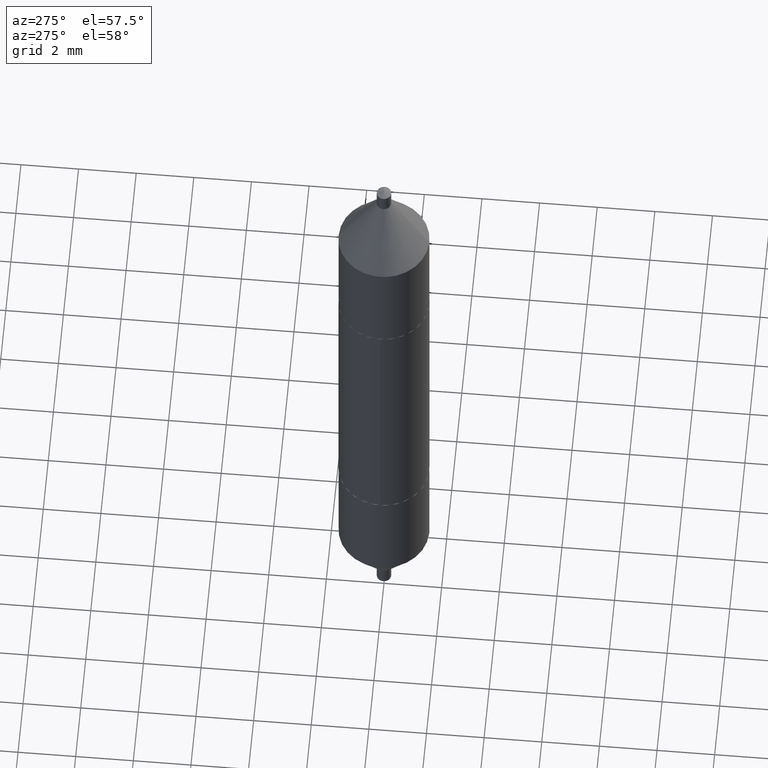
[diagram: clean part render]
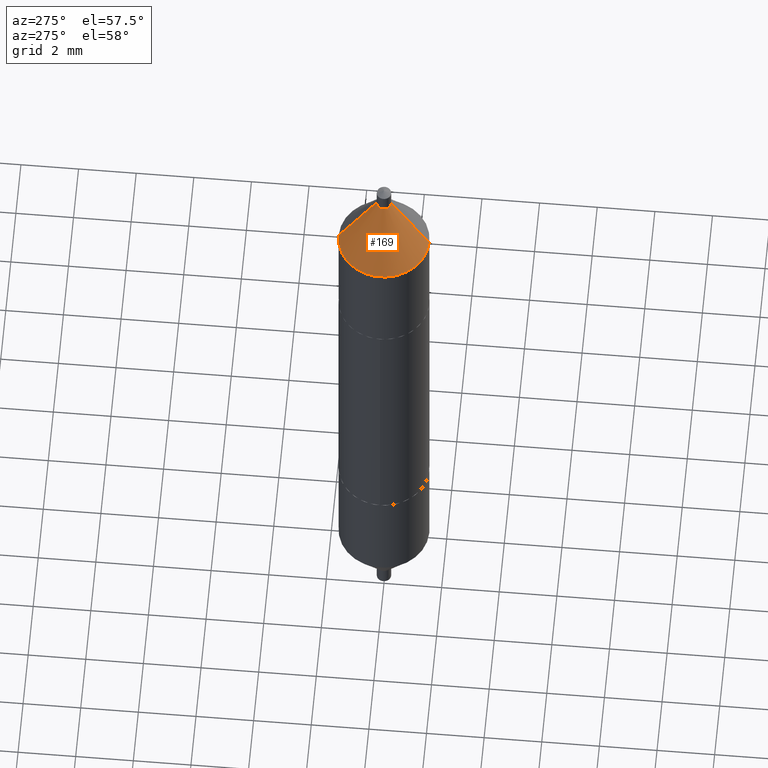
[diagram: same view with one face highlighted and labeled with its STEP entity id]
A machine part, auxiliary view. The second image highlights one B-rep face of the part: STEP entity #169.
In plain terms, the highlighted conical surface has half-angle 30 deg.
Its self-contained STEP definition (entity closure, byte-faithful):
#35 = CARTESIAN_POINT ( 'NONE',  ( 4.253508758618298876E-16, 0.06200000000000131101, 0.3681735503852815450 ) ) ;
#46 = CARTESIAN_POINT ( 'NONE',  ( -6.878218237522206873E-17, -0.009849999999998559561, 0.4584999999999999631 ) ) ;
#75 = AXIS2_PLACEMENT_3D ( 'NONE', #254, #148, #157 ) ;
#86 = EDGE_CURVE ( 'NONE', #278, #128, #197, .T. ) ;
#98 = ORIENTED_EDGE ( 'NONE', *, *, #356, .F. ) ;
#128 = VERTEX_POINT ( 'NONE', #623 ) ;
#132 = DIRECTION ( 'NONE',  ( -2.674940976805724473E-29, 3.162864129769616259E-15, 1.000000000000000000 ) ) ;
#148 = DIRECTION ( 'NONE',  ( -2.674940976805724473E-29, 3.162864129769616259E-15, 1.000000000000000000 ) ) ;
#151 = CARTESIAN_POINT ( 'NONE',  ( 6.757590527803834340E-17, 0.009850000000001598796, 0.4584999999999999631 ) ) ;
#157 = DIRECTION ( 'NONE',  ( -6.982962677686267499E-15, -1.000000000000000000, 0.000000000000000000 ) ) ;
#163 = ORIENTED_EDGE ( 'NONE', *, *, #482, .F. ) ;
#169 = ADVANCED_FACE ( 'NONE', ( #573 ), #359, .T. ) ;
#171 = AXIS2_PLACEMENT_3D ( 'NONE', #342, #132, #555 ) ;
#197 = CIRCLE ( 'NONE', #171, 0.06200000000000008282 ) ;
#236 = VERTEX_POINT ( 'NONE', #415 ) ;
#254 = CARTESIAN_POINT ( 'NONE',  ( -1.178156545949790995E-29, 1.519347126009346791E-15, 0.4584999999999999631 ) ) ;
#278 = VERTEX_POINT ( 'NONE', #35 ) ;
#318 = ORIENTED_EDGE ( 'NONE', *, *, #513, .T. ) ;
#342 = CARTESIAN_POINT ( 'NONE',  ( -9.365386245860034671E-30, 1.233656838553512094E-15, 0.3681735503852817115 ) ) ;
#356 = EDGE_CURVE ( 'NONE', #360, #128, #634, .T. ) ;
#359 = CONICAL_SURFACE ( 'NONE', #687, 0.009850000000000079178, 0.5235987755982925984 ) ;
#360 = VERTEX_POINT ( 'NONE', #481 ) ;
#365 = DIRECTION ( 'NONE',  ( -3.491481338843071430E-15, -0.4999999999999972800, -0.8660254037844402619 ) ) ;
#388 = EDGE_LOOP ( 'NONE', ( #163, #318, #557, #98 ) ) ;
#410 = LINE ( 'NONE', #151, #438 ) ;
#415 = CARTESIAN_POINT ( 'NONE',  ( 6.757590527803801060E-17, 0.009850000000001598796, 0.4584999999999999631 ) ) ;
#438 = VECTOR ( 'NONE', #624, 39.37007874015748143 ) ;
#455 = CARTESIAN_POINT ( 'NONE',  ( -1.178156545949790995E-29, 1.519347126009346791E-15, 0.4584999999999999631 ) ) ;
#481 = CARTESIAN_POINT ( 'NONE',  ( -6.878218237522206873E-17, -0.009849999999998559561, 0.4584999999999999631 ) ) ;
#482 = EDGE_CURVE ( 'NONE', #236, #360, #650, .T. ) ;
#503 = VECTOR ( 'NONE', #365, 39.37007874015748143 ) ;
#513 = EDGE_CURVE ( 'NONE', #236, #278, #410, .T. ) ;
#555 = DIRECTION ( 'NONE',  ( -6.982962677686265922E-15, -1.000000000000000000, 3.304654831045475469E-15 ) ) ;
#557 = ORIENTED_EDGE ( 'NONE', *, *, #86, .T. ) ;
#560 = DIRECTION ( 'NONE',  ( -6.982962677686267499E-15, -1.000000000000000000, 0.000000000000000000 ) ) ;
#573 = FACE_OUTER_BOUND ( 'NONE', #388, .T. ) ;
#623 = CARTESIAN_POINT ( 'NONE',  ( -4.329436860165583751E-16, -0.06199999999999884770, 0.3681735503852819336 ) ) ;
#624 = DIRECTION ( 'NONE',  ( 3.430248998885751187E-15, 0.4999999999999918954, -0.8660254037844432595 ) ) ;
#634 = LINE ( 'NONE', #46, #503 ) ;
#650 = CIRCLE ( 'NONE', #75, 0.009850000000000079178 ) ;
#672 = DIRECTION ( 'NONE',  ( 2.674940976805724473E-29, -3.162864129769616259E-15, -1.000000000000000000 ) ) ;
#687 = AXIS2_PLACEMENT_3D ( 'NONE', #455, #672, #560 ) ;